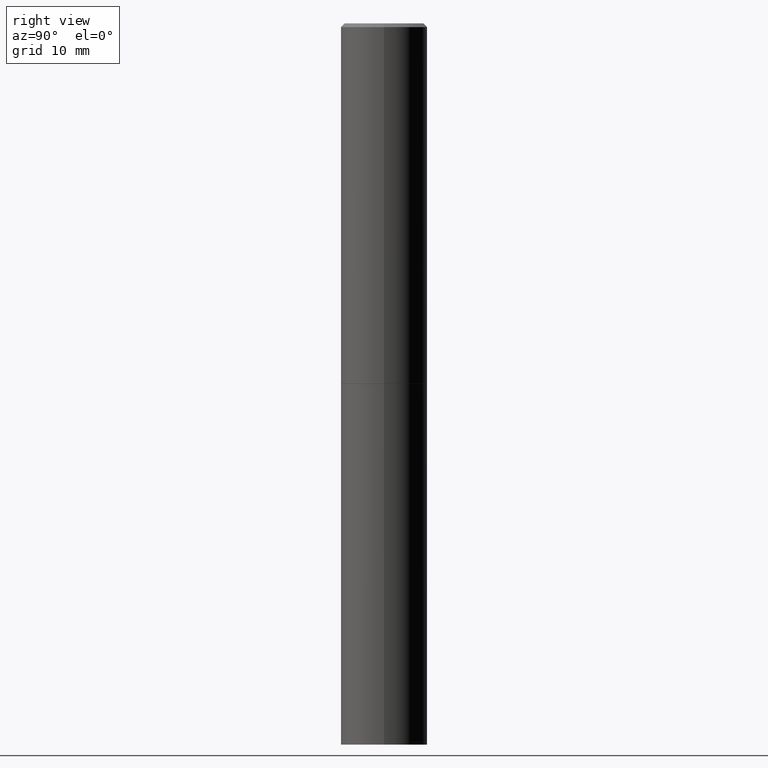
[diagram: clean part render]
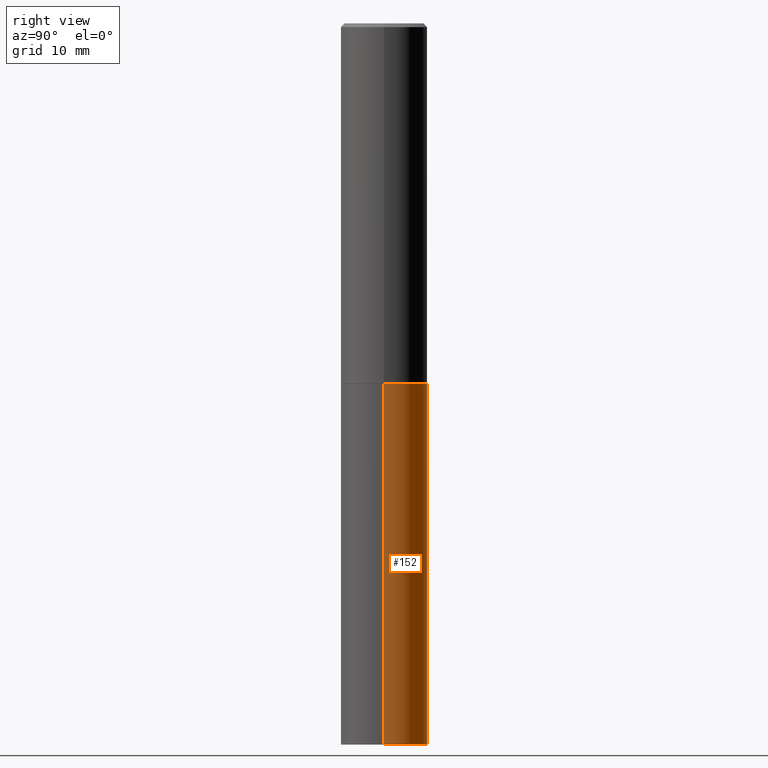
[diagram: same view with one face highlighted and labeled with its STEP entity id]
A machine part, right view. The second image highlights one B-rep face of the part: STEP entity #152.
In plain terms, the highlighted cylindrical surface (partial cylindrical patch) has radius 5.9995 mm, axis along (-0, 0, 1).
Its self-contained STEP definition (entity closure, byte-faithful):
#24 = ORIENTED_EDGE ( 'NONE', *, *, #208, .T. ) ;
#25 = DIRECTION ( 'NONE',  ( -2.445468806185136597E-29, 3.491481338843145583E-15, 1.000000000000000000 ) ) ;
#33 = CARTESIAN_POINT ( 'NONE',  ( 9.627810689950883669E-29, -1.374596203102546341E-14, -3.937000000000000277 ) ) ;
#35 = CARTESIAN_POINT ( 'NONE',  ( 4.813905344975441835E-29, -6.872981015512731707E-15, -1.968500000000000139 ) ) ;
#37 = CARTESIAN_POINT ( 'NONE',  ( -0.2361999999999999933, 1.678301941865356591E-15, -1.161852468318208757E-29 ) ) ;
#42 = CIRCLE ( 'NONE', #198, 0.2361999999999999933 ) ;
#46 = AXIS2_PLACEMENT_3D ( 'NONE', #265, #25, #346 ) ;
#49 = CARTESIAN_POINT ( 'NONE',  ( 0.2361999999999999933, -1.649375784469496131E-15, 1.151752954443000088E-29 ) ) ;
#65 = EDGE_CURVE ( 'NONE', #324, #112, #291, .T. ) ;
#79 = CARTESIAN_POINT ( 'NONE',  ( 0.2361999999999999933, -8.522356799982228232E-15, -1.968500000000000139 ) ) ;
#83 = VERTEX_POINT ( 'NONE', #234 ) ;
#88 = EDGE_LOOP ( 'NONE', ( #144, #24, #155, #194 ) ) ;
#89 = DIRECTION ( 'NONE',  ( 1.000000000000000000, -6.982962677686265133E-15, 0.000000000000000000 ) ) ;
#92 = CARTESIAN_POINT ( 'NONE',  ( -0.2361999999999999933, -8.631169581403741167E-15, -1.968500000000000139 ) ) ;
#108 = DIRECTION ( 'NONE',  ( -2.445468806185136597E-29, 3.491481338843145583E-15, 1.000000000000000000 ) ) ;
#112 = VERTEX_POINT ( 'NONE', #92 ) ;
#117 = DIRECTION ( 'NONE',  ( -2.445468806185136597E-29, 3.491481338843145583E-15, 1.000000000000000000 ) ) ;
#120 = LINE ( 'NONE', #37, #165 ) ;
#124 = AXIS2_PLACEMENT_3D ( 'NONE', #35, #108, #330 ) ;
#144 = ORIENTED_EDGE ( 'NONE', *, *, #161, .T. ) ;
#152 = ADVANCED_FACE ( 'NONE', ( #327 ), #347, .T. ) ;
#155 = ORIENTED_EDGE ( 'NONE', *, *, #65, .F. ) ;
#159 = DIRECTION ( 'NONE',  ( -2.445468806185136877E-29, 3.491481338843145188E-15, 1.000000000000000000 ) ) ;
#161 = EDGE_CURVE ( 'NONE', #211, #83, #42, .T. ) ;
#165 = VECTOR ( 'NONE', #218, 39.37007874015748143 ) ;
#181 = CARTESIAN_POINT ( 'NONE',  ( 0.2361999999999999933, -1.539533781549495994E-14, -3.937000000000000277 ) ) ;
#194 = ORIENTED_EDGE ( 'NONE', *, *, #268, .F. ) ;
#198 = AXIS2_PLACEMENT_3D ( 'NONE', #33, #117, #89 ) ;
#208 = EDGE_CURVE ( 'NONE', #83, #112, #120, .T. ) ;
#210 = VECTOR ( 'NONE', #159, 39.37007874015748143 ) ;
#211 = VERTEX_POINT ( 'NONE', #181 ) ;
#218 = DIRECTION ( 'NONE',  ( -2.445468806185136877E-29, 3.491481338843145188E-15, 1.000000000000000000 ) ) ;
#234 = CARTESIAN_POINT ( 'NONE',  ( -0.2361999999999999933, -8.631169581403741167E-15, -3.937000000000000277 ) ) ;
#265 = CARTESIAN_POINT ( 'NONE',  ( 0.000000000000000000, 0.000000000000000000, 0.000000000000000000 ) ) ;
#268 = EDGE_CURVE ( 'NONE', #211, #324, #315, .T. ) ;
#291 = CIRCLE ( 'NONE', #124, 0.2361999999999999933 ) ;
#315 = LINE ( 'NONE', #49, #210 ) ;
#324 = VERTEX_POINT ( 'NONE', #79 ) ;
#327 = FACE_OUTER_BOUND ( 'NONE', #88, .T. ) ;
#330 = DIRECTION ( 'NONE',  ( 1.000000000000000000, -6.982962677686269077E-15, 0.000000000000000000 ) ) ;
#346 = DIRECTION ( 'NONE',  ( 1.000000000000000000, -6.982962677686266711E-15, 4.876176775795936353E-29 ) ) ;
#347 = CYLINDRICAL_SURFACE ( 'NONE', #46, 0.2361999999999999933 ) ;